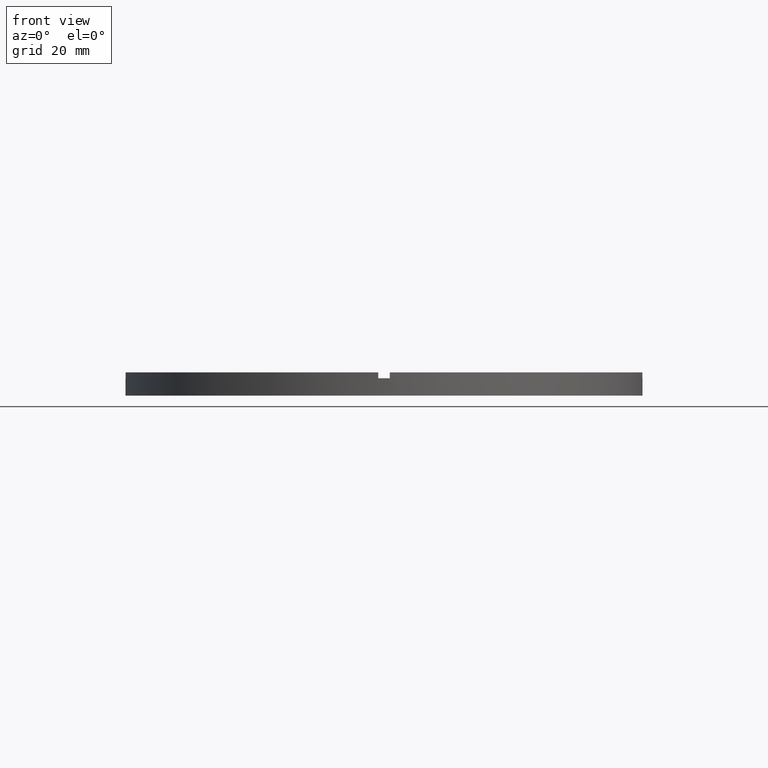
[diagram: clean part render]
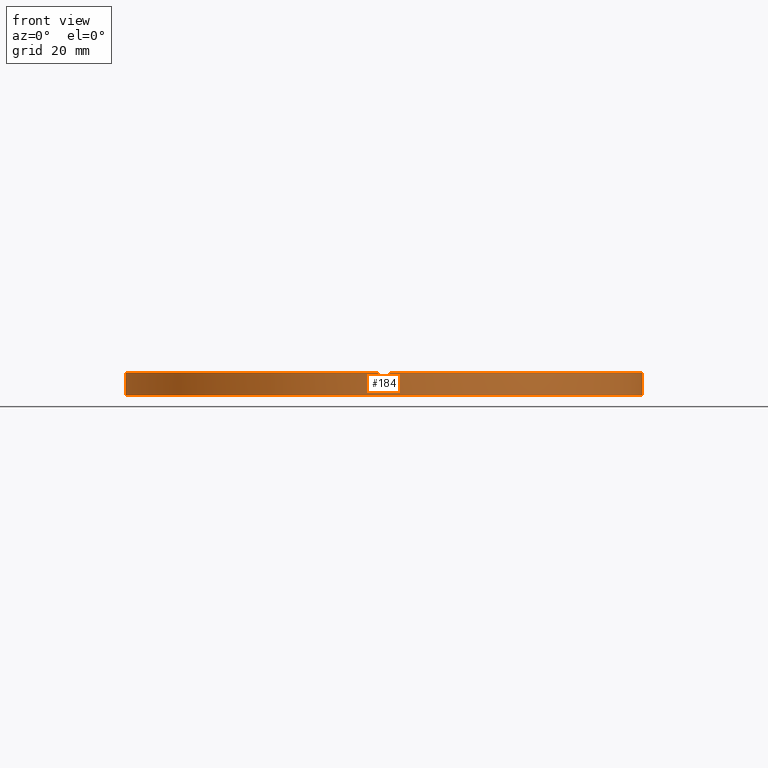
[diagram: same view with one face highlighted and labeled with its STEP entity id]
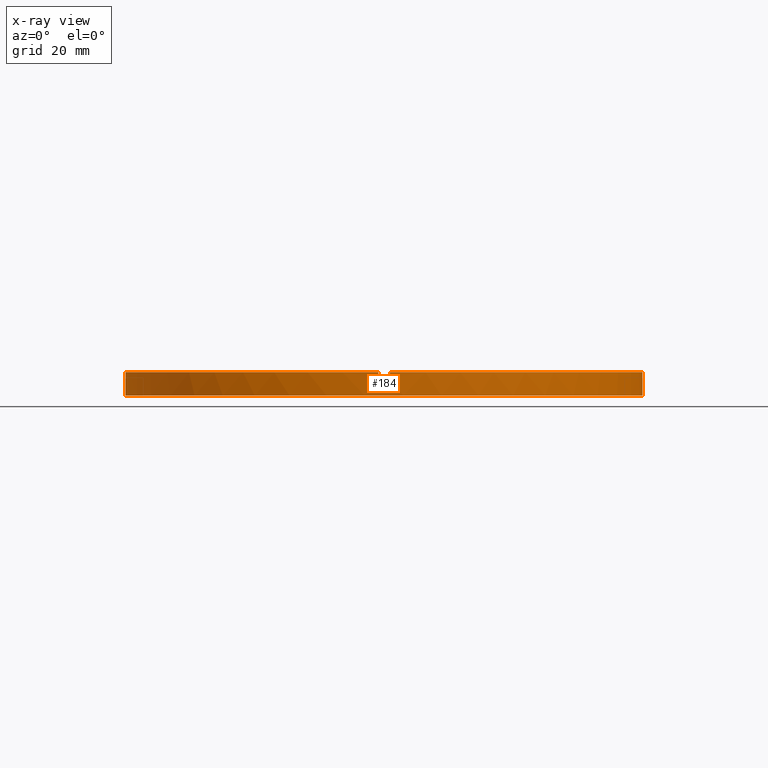
[diagram: x-ray of the same camera — body ghosted, the highlighted face saturated]
A machine part, front view. The second image highlights one B-rep face of the part: STEP entity #184.
The next image is the same camera in x-ray: the body ghosted, the highlighted face saturated — about 0% of this face is hidden behind the body in this view.
In plain terms, the highlighted cylindrical surface (partial cylindrical patch) has radius 44.5 mm, axis along (-0, -0, -1).
Its self-contained STEP definition (entity closure, byte-faithful):
#12 = CARTESIAN_POINT ( 'NONE',  ( 0.000000000000000000, 0.000000000000000000, 3.000000000000000000 ) ) ;
#22 = ORIENTED_EDGE ( 'NONE', *, *, #340, .F. ) ;
#31 = AXIS2_PLACEMENT_3D ( 'NONE', #757, #39, #606 ) ;
#39 = DIRECTION ( 'NONE',  ( 0.000000000000000000, 0.000000000000000000, 1.000000000000000000 ) ) ;
#62 = EDGE_CURVE ( 'NONE', #299, #156, #679, .T. ) ;
#66 = CARTESIAN_POINT ( 'NONE',  ( 0.000000000000000000, 0.000000000000000000, 3.000000000000000000 ) ) ;
#79 = DIRECTION ( 'NONE',  ( 1.000000000000000000, 0.000000000000000000, 0.000000000000000000 ) ) ;
#80 = DIRECTION ( 'NONE',  ( -1.000000000000000000, 0.000000000000000000, 0.000000000000000000 ) ) ;
#86 = DIRECTION ( 'NONE',  ( -0.000000000000000000, -0.000000000000000000, -1.000000000000000000 ) ) ;
#93 = VERTEX_POINT ( 'NONE', #123 ) ;
#98 = DIRECTION ( 'NONE',  ( 0.000000000000000000, 0.000000000000000000, 1.000000000000000000 ) ) ;
#105 = CIRCLE ( 'NONE', #547, 44.50000000000000711 ) ;
#108 = FACE_OUTER_BOUND ( 'NONE', #620, .T. ) ;
#119 = LINE ( 'NONE', #588, #135 ) ;
#121 = CIRCLE ( 'NONE', #31, 44.50000000000000711 ) ;
#123 = CARTESIAN_POINT ( 'NONE',  ( -1.000000000000158096, -44.48876262608345655, 4.000000000000000000 ) ) ;
#126 = VECTOR ( 'NONE', #485, 1000.000000000000000 ) ;
#127 = EDGE_CURVE ( 'NONE', #299, #93, #121, .T. ) ;
#135 = VECTOR ( 'NONE', #515, 1000.000000000000000 ) ;
#146 = VECTOR ( 'NONE', #580, 1000.000000000000000 ) ;
#149 = CARTESIAN_POINT ( 'NONE',  ( -1.000000000000158096, -44.48876262608345655, 3.000000000000000000 ) ) ;
#150 = CARTESIAN_POINT ( 'NONE',  ( -44.50000000000000711, 0.000000000000000000, 4.000000000000000000 ) ) ;
#153 = LINE ( 'NONE', #466, #146 ) ;
#156 = VERTEX_POINT ( 'NONE', #752 ) ;
#177 = CIRCLE ( 'NONE', #344, 44.50000000000000711 ) ;
#181 = CARTESIAN_POINT ( 'NONE',  ( 44.50000000000000711, 5.449678256205721981E-15, 0.000000000000000000 ) ) ;
#184 = ADVANCED_FACE ( 'NONE', ( #108 ), #640, .T. ) ;
#201 = AXIS2_PLACEMENT_3D ( 'NONE', #589, #226, #529 ) ;
#208 = CARTESIAN_POINT ( 'NONE',  ( -44.48876262608345655, -1.000000000000029754, 4.000000000000000000 ) ) ;
#226 = DIRECTION ( 'NONE',  ( 0.000000000000000000, 0.000000000000000000, 1.000000000000000000 ) ) ;
#230 = DIRECTION ( 'NONE',  ( -0.000000000000000000, 0.000000000000000000, 1.000000000000000000 ) ) ;
#236 = ORIENTED_EDGE ( 'NONE', *, *, #461, .T. ) ;
#241 = VERTEX_POINT ( 'NONE', #474 ) ;
#249 = EDGE_CURVE ( 'NONE', #641, #708, #105, .T. ) ;
#250 = DIRECTION ( 'NONE',  ( -0.000000000000000000, -0.000000000000000000, -1.000000000000000000 ) ) ;
#251 = VERTEX_POINT ( 'NONE', #360 ) ;
#256 = ORIENTED_EDGE ( 'NONE', *, *, #298, .T. ) ;
#271 = EDGE_CURVE ( 'NONE', #251, #456, #119, .T. ) ;
#298 = EDGE_CURVE ( 'NONE', #410, #339, #397, .T. ) ;
#299 = VERTEX_POINT ( 'NONE', #609 ) ;
#327 = CARTESIAN_POINT ( 'NONE',  ( 44.50000000000000711, 5.449678256205721981E-15, 3.000000000000000000 ) ) ;
#335 = DIRECTION ( 'NONE',  ( 0.000000000000000000, 0.000000000000000000, 1.000000000000000000 ) ) ;
#339 = VERTEX_POINT ( 'NONE', #181 ) ;
#340 = EDGE_CURVE ( 'NONE', #545, #339, #369, .T. ) ;
#344 = AXIS2_PLACEMENT_3D ( 'NONE', #510, #579, #762 ) ;
#360 = CARTESIAN_POINT ( 'NONE',  ( 44.48876262608345655, -1.000000000000156097, 3.000000000000000000 ) ) ;
#369 = LINE ( 'NONE', #599, #126 ) ;
#370 = CARTESIAN_POINT ( 'NONE',  ( 0.9999999999998419042, -44.48876262608346366, 4.000000000000000000 ) ) ;
#374 = ORIENTED_EDGE ( 'NONE', *, *, #633, .T. ) ;
#381 = CARTESIAN_POINT ( 'NONE',  ( -44.50000000000000711, 0.000000000000000000, 0.000000000000000000 ) ) ;
#397 = CIRCLE ( 'NONE', #476, 44.50000000000000711 ) ;
#398 = CARTESIAN_POINT ( 'NONE',  ( 0.9999999999998419042, -44.48876262608346366, 3.000000000000000000 ) ) ;
#408 = VECTOR ( 'NONE', #335, 1000.000000000000000 ) ;
#410 = VERTEX_POINT ( 'NONE', #381 ) ;
#422 = LINE ( 'NONE', #150, #721 ) ;
#427 = LINE ( 'NONE', #585, #408 ) ;
#434 = CIRCLE ( 'NONE', #201, 44.50000000000000711 ) ;
#456 = VERTEX_POINT ( 'NONE', #581 ) ;
#461 = EDGE_CURVE ( 'NONE', #241, #410, #422, .T. ) ;
#466 = CARTESIAN_POINT ( 'NONE',  ( 0.9999999999998419042, -44.48876262608346366, 4.000000000000000000 ) ) ;
#474 = CARTESIAN_POINT ( 'NONE',  ( -44.50000000000000711, 0.000000000000000000, 3.000000000000000000 ) ) ;
#476 = AXIS2_PLACEMENT_3D ( 'NONE', #571, #565, #79 ) ;
#485 = DIRECTION ( 'NONE',  ( -0.000000000000000000, -0.000000000000000000, -1.000000000000000000 ) ) ;
#502 = ORIENTED_EDGE ( 'NONE', *, *, #507, .F. ) ;
#505 = CARTESIAN_POINT ( 'NONE',  ( 0.000000000000000000, 0.000000000000000000, 4.000000000000000000 ) ) ;
#507 = EDGE_CURVE ( 'NONE', #618, #456, #434, .T. ) ;
#510 = CARTESIAN_POINT ( 'NONE',  ( 0.000000000000000000, 0.000000000000000000, 3.000000000000000000 ) ) ;
#515 = DIRECTION ( 'NONE',  ( 0.000000000000000000, 0.000000000000000000, 1.000000000000000000 ) ) ;
#525 = ORIENTED_EDGE ( 'NONE', *, *, #127, .F. ) ;
#529 = DIRECTION ( 'NONE',  ( 1.000000000000000000, 0.000000000000000000, 0.000000000000000000 ) ) ;
#545 = VERTEX_POINT ( 'NONE', #327 ) ;
#547 = AXIS2_PLACEMENT_3D ( 'NONE', #12, #230, #726 ) ;
#565 = DIRECTION ( 'NONE',  ( 0.000000000000000000, 0.000000000000000000, 1.000000000000000000 ) ) ;
#571 = CARTESIAN_POINT ( 'NONE',  ( 0.000000000000000000, 0.000000000000000000, 0.000000000000000000 ) ) ;
#579 = DIRECTION ( 'NONE',  ( 0.000000000000000000, 0.000000000000000000, 1.000000000000000000 ) ) ;
#580 = DIRECTION ( 'NONE',  ( -0.000000000000000000, -0.000000000000000000, -1.000000000000000000 ) ) ;
#581 = CARTESIAN_POINT ( 'NONE',  ( 44.48876262608345655, -1.000000000000156097, 4.000000000000000000 ) ) ;
#585 = CARTESIAN_POINT ( 'NONE',  ( -1.000000000000158096, -44.48876262608345655, 4.000000000000000000 ) ) ;
#588 = CARTESIAN_POINT ( 'NONE',  ( 44.48876262608345655, -1.000000000000156097, 4.000000000000000000 ) ) ;
#589 = CARTESIAN_POINT ( 'NONE',  ( 0.000000000000000000, 0.000000000000000000, 4.000000000000000000 ) ) ;
#596 = EDGE_CURVE ( 'NONE', #641, #93, #427, .T. ) ;
#599 = CARTESIAN_POINT ( 'NONE',  ( 44.50000000000000711, 5.449678256205721981E-15, 4.000000000000000000 ) ) ;
#606 = DIRECTION ( 'NONE',  ( 1.000000000000000000, 0.000000000000000000, 0.000000000000000000 ) ) ;
#609 = CARTESIAN_POINT ( 'NONE',  ( -44.48876262608345655, -1.000000000000029754, 4.000000000000000000 ) ) ;
#612 = DIRECTION ( 'NONE',  ( 1.000000000000000000, 0.000000000000000000, 0.000000000000000000 ) ) ;
#618 = VERTEX_POINT ( 'NONE', #370 ) ;
#620 = EDGE_LOOP ( 'NONE', ( #22, #758, #671, #502, #374, #637, #659, #525, #639, #625, #236, #256 ) ) ;
#625 = ORIENTED_EDGE ( 'NONE', *, *, #738, .F. ) ;
#633 = EDGE_CURVE ( 'NONE', #618, #708, #153, .T. ) ;
#637 = ORIENTED_EDGE ( 'NONE', *, *, #249, .F. ) ;
#639 = ORIENTED_EDGE ( 'NONE', *, *, #62, .T. ) ;
#640 = CYLINDRICAL_SURFACE ( 'NONE', #772, 44.50000000000000711 ) ;
#641 = VERTEX_POINT ( 'NONE', #149 ) ;
#654 = VECTOR ( 'NONE', #250, 1000.000000000000000 ) ;
#659 = ORIENTED_EDGE ( 'NONE', *, *, #596, .T. ) ;
#671 = ORIENTED_EDGE ( 'NONE', *, *, #271, .T. ) ;
#679 = LINE ( 'NONE', #208, #654 ) ;
#686 = CIRCLE ( 'NONE', #714, 44.50000000000000711 ) ;
#696 = DIRECTION ( 'NONE',  ( -0.000000000000000000, -0.000000000000000000, -1.000000000000000000 ) ) ;
#708 = VERTEX_POINT ( 'NONE', #398 ) ;
#714 = AXIS2_PLACEMENT_3D ( 'NONE', #66, #98, #612 ) ;
#721 = VECTOR ( 'NONE', #86, 1000.000000000000000 ) ;
#726 = DIRECTION ( 'NONE',  ( 1.000000000000000000, 0.000000000000000000, 0.000000000000000000 ) ) ;
#738 = EDGE_CURVE ( 'NONE', #241, #156, #686, .T. ) ;
#752 = CARTESIAN_POINT ( 'NONE',  ( -44.48876262608345655, -1.000000000000029754, 3.000000000000000000 ) ) ;
#757 = CARTESIAN_POINT ( 'NONE',  ( 0.000000000000000000, 0.000000000000000000, 4.000000000000000000 ) ) ;
#758 = ORIENTED_EDGE ( 'NONE', *, *, #782, .F. ) ;
#762 = DIRECTION ( 'NONE',  ( 1.000000000000000000, 0.000000000000000000, 0.000000000000000000 ) ) ;
#772 = AXIS2_PLACEMENT_3D ( 'NONE', #505, #696, #80 ) ;
#782 = EDGE_CURVE ( 'NONE', #251, #545, #177, .T. ) ;